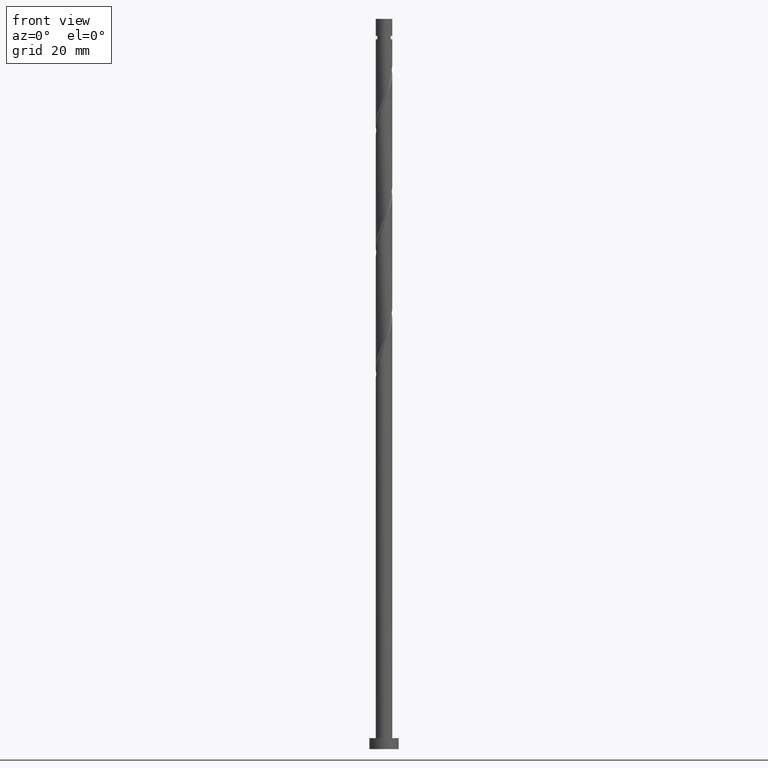
[diagram: clean part render]
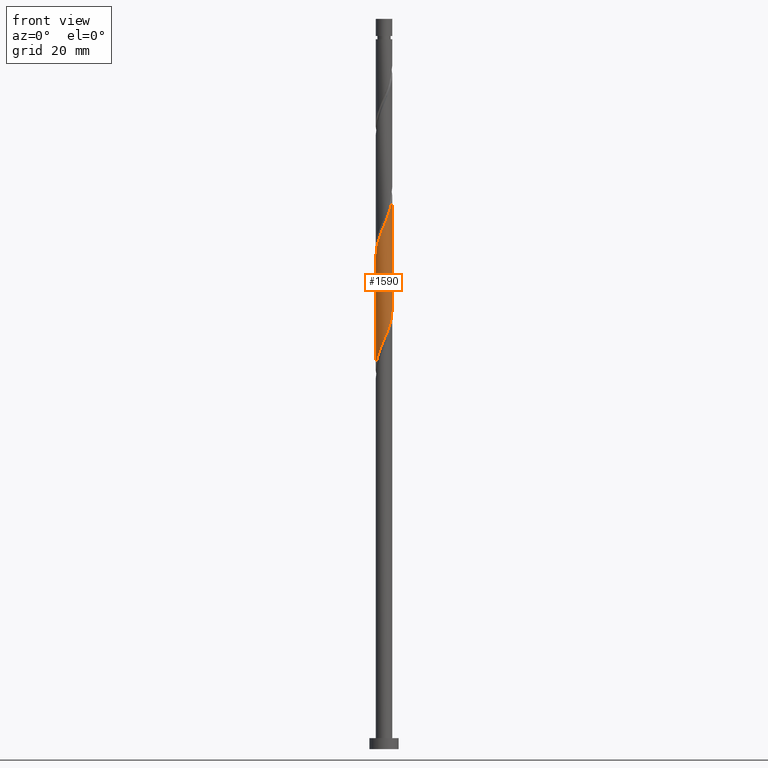
[diagram: same view with one face highlighted and labeled with its STEP entity id]
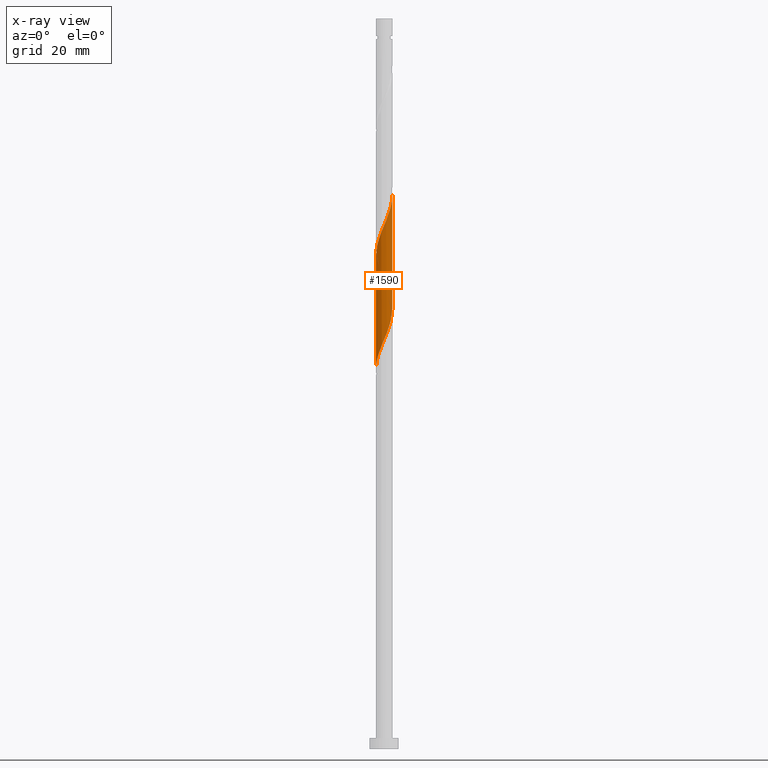
[diagram: x-ray of the same camera — body ghosted, the highlighted face saturated]
A machine part, front view. The second image highlights one B-rep face of the part: STEP entity #1590.
The next image is the same camera in x-ray: the body ghosted, the highlighted face saturated — about 0% of this face is hidden behind the body in this view.
In plain terms, the highlighted cylindrical surface (edge-blend (fillet) strip) has radius 2.25 mm, axis along (-0, -0, -1).
Its self-contained STEP definition (entity closure, byte-faithful):
#6 = CARTESIAN_POINT ( 'NONE',  ( 0.1382081664005517796, -2.245751211229819688, 112.4597482798692312 ) ) ;
#23 = CARTESIAN_POINT ( 'NONE',  ( 2.250000000000003109, 5.009517788612656361E-16, 151.6739594024369637 ) ) ;
#42 = CARTESIAN_POINT ( 'NONE',  ( 0.7380381038781879122, -2.146053338476577643, 145.0986371687580458 ) ) ;
#71 = CARTESIAN_POINT ( 'NONE',  ( 1.268329541124939785, -1.881910026933373725, 146.4875260576469600 ) ) ;
#74 =( BOUNDED_CURVE ( )  B_SPLINE_CURVE ( 2, ( #893, #1425, #1301, #112, #647, #523, #397, #1098, #154, #587, #948, #1654, #6, #1496, #1478, #560, #831, #1340, #1621, #939, #1488, #521, #1054, #1336, #148, #1197, #1582 ),
 .UNSPECIFIED., .F., .T. ) 
 B_SPLINE_CURVE_WITH_KNOTS ( ( 3, 2, 2, 2, 2, 2, 2, 2, 2, 2, 2, 2, 2, 3 ),
 ( 0.8045317669814461281, 0.8125000000000000000, 0.8229166666666666297, 0.8333333333333333703, 0.8437500000000000000, 0.8541666666666666297, 0.8645833333333333703, 0.8750000000000000000, 0.8854166666666666297, 0.8958333333333333703, 0.9062500000000000000, 0.9166666666666666297, 0.9270833333333333703, 0.9295317669814463502 ),
 .UNSPECIFIED. ) 
 CURVE ( )  GEOMETRIC_REPRESENTATION_ITEM ( )  RATIONAL_B_SPLINE_CURVE ( ( 0.9062941362546502733, 0.9031415850403542445, 0.9090909090909298218, 0.9013135103398483006, 0.9090909090909298218, 0.9013135103398483006, 0.9090909090909298218, 0.9013135103398483006, 0.9090909090909298218, 0.9013135103398483006, 0.9090909090909298218, 0.9013135103398483006, 0.9090909090909298218, 0.9013135103398483006, 0.9090909090909298218, 0.9013135103398483006, 0.9090909090909298218, 0.9013135103398483006, 0.9090909090909298218, 0.9013135103398483006, 0.9090909090909298218, 0.9013135103398483006, 0.9090909090909298218, 0.9013135103398483006, 0.9090909090909298218, 0.9072628343904235448, 0.9062941362546501622 ) ) 
 REPRESENTATION_ITEM ( '' )  );
#112 = CARTESIAN_POINT ( 'NONE',  ( 2.146053338476572314, -0.7380381038781896885, 118.7097482798692312 ) ) ;
#148 = CARTESIAN_POINT ( 'NONE',  ( -2.245751211229818800, -0.1382081664005524180, 104.1264149465358884 ) ) ;
#154 = CARTESIAN_POINT ( 'NONE',  ( 1.242567388728253563, -1.875773516304420241, 115.2375260576470168 ) ) ;
#174 = VECTOR ( 'NONE', #465, 1000.000000000000000 ) ;
#187 = VECTOR ( 'NONE', #877, 1000.000000000000000 ) ;
#194 = CARTESIAN_POINT ( 'NONE',  ( -2.146053338476577643, -0.7380381038781881342, 136.7653038354247599 ) ) ;
#203 = CARTESIAN_POINT ( 'NONE',  ( -2.250000000000003997, -0.2261335084333196688, 135.5407191049594928 ) ) ;
#246 = ORIENTED_EDGE ( 'NONE', *, *, #1464, .T. ) ;
#306 = AXIS2_PLACEMENT_3D ( 'NONE', #1391, #856, #1402 ) ;
#340 = CYLINDRICAL_SURFACE ( 'NONE', #306, 2.250000000000000000 ) ;
#350 = CARTESIAN_POINT ( 'NONE',  ( 1.490257978641319259, -1.685713841995700069, 147.1819705020914171 ) ) ;
#360 = CARTESIAN_POINT ( 'NONE',  ( 2.250000000000000000, 2.755455298081544285E-16, 200.0000000000000000 ) ) ;
#397 = CARTESIAN_POINT ( 'NONE',  ( 1.685713841995696738, -1.490257978641318592, 116.6264149465359026 ) ) ;
#407 = CARTESIAN_POINT ( 'NONE',  ( 1.875773516304421573, -1.242567388728258004, 148.5708593909803028 ) ) ;
#414 = ORIENTED_EDGE ( 'NONE', *, *, #1484, .F. ) ;
#417 = EDGE_CURVE ( 'NONE', #748, #1009, #734, .T. ) ;
#444 = VERTEX_POINT ( 'NONE', #1025 ) ;
#465 = DIRECTION ( 'NONE',  ( -0.000000000000000000, -0.000000000000000000, -1.000000000000000000 ) ) ;
#478 = CARTESIAN_POINT ( 'NONE',  ( 1.712186416157697622, -1.489517657058026634, 147.8764149465359310 ) ) ;
#517 = ORIENTED_EDGE ( 'NONE', *, *, #781, .F. ) ;
#521 = CARTESIAN_POINT ( 'NONE',  ( -2.039360616451142416, -0.9956171203984852669, 106.2097482798692454 ) ) ;
#523 = CARTESIAN_POINT ( 'NONE',  ( 1.881910026933369506, -1.268329541124940230, 117.3208593909803596 ) ) ;
#560 = CARTESIAN_POINT ( 'NONE',  ( -0.7380381038781885783, -2.146053338476573202, 110.3764149465358884 ) ) ;
#587 = CARTESIAN_POINT ( 'NONE',  ( 0.9956171203984852669, -2.039360616451142416, 114.5430816132025313 ) ) ;
#591 = CARTESIAN_POINT ( 'NONE',  ( -2.205000000000003624, -0.4477443466979801334, 136.0708593909803312 ) ) ;
#609 = CARTESIAN_POINT ( 'NONE',  ( -0.4338669223188790780, -2.227555760936213769, 142.3208593909802744 ) ) ;
#647 = CARTESIAN_POINT ( 'NONE',  ( 2.013981682704971465, -1.003183822501565237, 118.0153038354247741 ) ) ;
#724 = CARTESIAN_POINT ( 'NONE',  ( -0.9956171203984888196, -2.039360616451145525, 140.9319705020914455 ) ) ;
#734 = LINE ( 'NONE', #360, #174 ) ;
#748 = VERTEX_POINT ( 'NONE', #1403 ) ;
#781 = EDGE_CURVE ( 'NONE', #444, #748, #885, .T. ) ;
#831 = CARTESIAN_POINT ( 'NONE',  ( -1.003183822501563904, -2.013981682704971909, 109.6819705020914455 ) ) ;
#847 = CARTESIAN_POINT ( 'NONE',  ( -1.242567388728257116, -1.875773516304422239, 140.2375260576469884 ) ) ;
#856 = DIRECTION ( 'NONE',  ( -0.000000000000000000, -0.000000000000000000, -1.000000000000000000 ) ) ;
#877 = DIRECTION ( 'NONE',  ( -0.000000000000000000, -0.000000000000000000, -1.000000000000000000 ) ) ;
#885 =( BOUNDED_CURVE ( )  B_SPLINE_CURVE ( 2, ( #1260, #203, #591, #194, #1224, #1245, #1105, #1660, #847, #724, #1518, #609, #1668, #983, #1382, #42, #1254, #71, #350, #478, #407, #931, #910, #1338, #1745, #1207, #23 ),
 .UNSPECIFIED., .F., .T. ) 
 B_SPLINE_CURVE_WITH_KNOTS ( ( 3, 2, 2, 2, 2, 2, 2, 2, 2, 2, 2, 2, 2, 3 ),
 ( 0.3045317669814461836, 0.3125000000000000000, 0.3229166666666666297, 0.3333333333333333703, 0.3437500000000000000, 0.3541666666666666297, 0.3645833333333333703, 0.3750000000000000000, 0.3854166666666666297, 0.3958333333333333703, 0.4062500000000000000, 0.4166666666666666297, 0.4270833333333333703, 0.4295317669814460726 ),
 .UNSPECIFIED. ) 
 CURVE ( )  GEOMETRIC_REPRESENTATION_ITEM ( )  RATIONAL_B_SPLINE_CURVE ( ( 0.9062941362546577118, 0.9031415850403617940, 0.9090909090909373713, 0.9013135103398557391, 0.9090909090909373713, 0.9013135103398557391, 0.9090909090909373713, 0.9013135103398557391, 0.9090909090909373713, 0.9013135103398557391, 0.9090909090909373713, 0.9013135103398557391, 0.9090909090909373713, 0.9013135103398557391, 0.9090909090909373713, 0.9013135103398557391, 0.9090909090909373713, 0.9013135103398557391, 0.9090909090909373713, 0.9013135103398557391, 0.9090909090909373713, 0.9013135103398557391, 0.9090909090909373713, 0.9013135103398557391, 0.9090909090909373713, 0.9072628343904313164, 0.9062941362546578228 ) ) 
 REPRESENTATION_ITEM ( '' )  );
#893 = CARTESIAN_POINT ( 'NONE',  ( 2.250000000000000444, 2.594481600968068817E-15, 120.4677593795237556 ) ) ;
#910 = CARTESIAN_POINT ( 'NONE',  ( 2.133458188693679869, -0.7147420213586845872, 149.9597482798691885 ) ) ;
#931 = CARTESIAN_POINT ( 'NONE',  ( 2.039360616451145525, -0.9956171203984888196, 149.2653038354247315 ) ) ;
#939 = CARTESIAN_POINT ( 'NONE',  ( -1.712186416157696289, -1.489517657058022859, 107.5986371687581169 ) ) ;
#948 = CARTESIAN_POINT ( 'NONE',  ( 0.7147420213586812565, -2.133458188693676760, 113.8486371687581027 ) ) ;
#978 = FACE_OUTER_BOUND ( 'NONE', #1142, .T. ) ;
#983 = CARTESIAN_POINT ( 'NONE',  ( 0.1574505895177711612, -2.263946661523429160, 143.7097482798692170 ) ) ;
#1009 = VERTEX_POINT ( 'NONE', #1326 ) ;
#1022 = CARTESIAN_POINT ( 'NONE',  ( -2.250000000000000000, 0.000000000000000000, 200.0000000000000000 ) ) ;
#1025 = CARTESIAN_POINT ( 'NONE',  ( -2.250000000000003109, 4.321643704206142327E-15, 135.0072927357702497 ) ) ;
#1054 = CARTESIAN_POINT ( 'NONE',  ( -2.133458188693676760, -0.7147420213586815896, 105.5153038354248025 ) ) ;
#1098 = CARTESIAN_POINT ( 'NONE',  ( 1.489517657058022859, -1.712186416157696289, 115.9319705020914597 ) ) ;
#1105 = CARTESIAN_POINT ( 'NONE',  ( -1.685713841995699847, -1.490257978641319259, 138.8486371687580458 ) ) ;
#1142 = EDGE_LOOP ( 'NONE', ( #1479, #517, #246, #414 ) ) ;
#1147 = LINE ( 'NONE', #1022, #187 ) ;
#1197 = CARTESIAN_POINT ( 'NONE',  ( -2.250000000000000444, -0.06916939122976289989, 103.9642564008852048 ) ) ;
#1207 = CARTESIAN_POINT ( 'NONE',  ( 2.250000000000002220, -0.06916939122977353027, 151.5107957144087720 ) ) ;
#1224 = CARTESIAN_POINT ( 'NONE',  ( -2.013981682704975462, -1.003183822501564570, 137.4597482798692170 ) ) ;
#1245 = CARTESIAN_POINT ( 'NONE',  ( -1.881910026933373725, -1.268329541124940674, 138.1541927243136456 ) ) ;
#1254 = CARTESIAN_POINT ( 'NONE',  ( 1.003183822501563904, -2.013981682704975906, 145.7930816132025598 ) ) ;
#1260 = CARTESIAN_POINT ( 'NONE',  ( -2.250000000000003109, 4.321643704206142327E-15, 135.0072927357702497 ) ) ;
#1301 = CARTESIAN_POINT ( 'NONE',  ( 2.205000000000000071, -0.4477443466979804665, 119.4041927243136882 ) ) ;
#1326 = CARTESIAN_POINT ( 'NONE',  ( 2.250000000000000444, 2.594481600968068817E-15, 120.4677593795237698 ) ) ;
#1336 = CARTESIAN_POINT ( 'NONE',  ( -2.227555760936211993, -0.4338669223188771351, 104.8208593909803596 ) ) ;
#1338 = CARTESIAN_POINT ( 'NONE',  ( 2.227555760936213769, -0.4338669223188801882, 150.6541927243135603 ) ) ;
#1340 = CARTESIAN_POINT ( 'NONE',  ( -1.268329541124939785, -1.881910026933370172, 108.9875260576470026 ) ) ;
#1382 = CARTESIAN_POINT ( 'NONE',  ( 0.4477443466979800779, -2.205000000000003624, 144.4041927243136456 ) ) ;
#1391 = CARTESIAN_POINT ( 'NONE',  ( 0.000000000000000000, 0.000000000000000000, 200.0000000000000000 ) ) ;
#1402 = DIRECTION ( 'NONE',  ( -1.000000000000000000, 0.000000000000000000, 0.000000000000000000 ) ) ;
#1403 = CARTESIAN_POINT ( 'NONE',  ( 2.250000000000003109, 5.009517788612656361E-16, 151.6739594024369353 ) ) ;
#1425 = CARTESIAN_POINT ( 'NONE',  ( 2.250000000000000888, -0.2261335084333190859, 119.9343330103344840 ) ) ;
#1450 = CARTESIAN_POINT ( 'NONE',  ( -2.250000000000000000, 3.155248517603818449E-15, 103.8010927128570557 ) ) ;
#1464 = EDGE_CURVE ( 'NONE', #444, #1744, #1147, .T. ) ;
#1478 = CARTESIAN_POINT ( 'NONE',  ( -0.4477443466979803000, -2.205000000000000071, 111.0708593909803454 ) ) ;
#1479 = ORIENTED_EDGE ( 'NONE', *, *, #417, .F. ) ;
#1484 = EDGE_CURVE ( 'NONE', #1009, #1744, #74, .T. ) ;
#1488 = CARTESIAN_POINT ( 'NONE',  ( -1.875773516304420019, -1.242567388728254896, 106.9041927243136740 ) ) ;
#1496 = CARTESIAN_POINT ( 'NONE',  ( -0.1574505895177728820, -2.263946661523425163, 111.7653038354247883 ) ) ;
#1518 = CARTESIAN_POINT ( 'NONE',  ( -0.7147420213586841431, -2.133458188693679869, 141.6264149465358742 ) ) ;
#1582 = CARTESIAN_POINT ( 'NONE',  ( -2.250000000000000444, 3.155248517603818449E-15, 103.8010927128570557 ) ) ;
#1590 = ADVANCED_FACE ( 'NONE', ( #978 ), #340, .T. ) ;
#1621 = CARTESIAN_POINT ( 'NONE',  ( -1.490257978641317926, -1.685713841995696738, 108.2930816132025598 ) ) ;
#1654 = CARTESIAN_POINT ( 'NONE',  ( 0.4338669223188763580, -2.227555760936211993, 113.1541927243136456 ) ) ;
#1660 = CARTESIAN_POINT ( 'NONE',  ( -1.489517657058026634, -1.712186416157697622, 139.5430816132025313 ) ) ;
#1668 = CARTESIAN_POINT ( 'NONE',  ( -0.1382081664005539168, -2.245751211229821465, 143.0153038354247030 ) ) ;
#1744 = VERTEX_POINT ( 'NONE', #1450 ) ;
#1745 = CARTESIAN_POINT ( 'NONE',  ( 2.245751211229821465, -0.1382081664005551935, 151.3486371687581027 ) ) ;